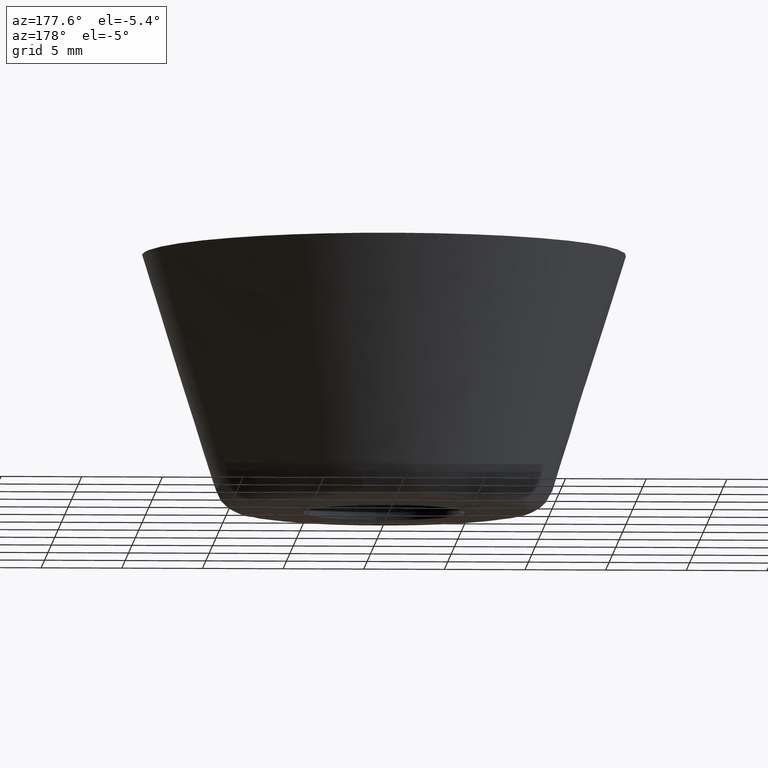
[diagram: clean part render]
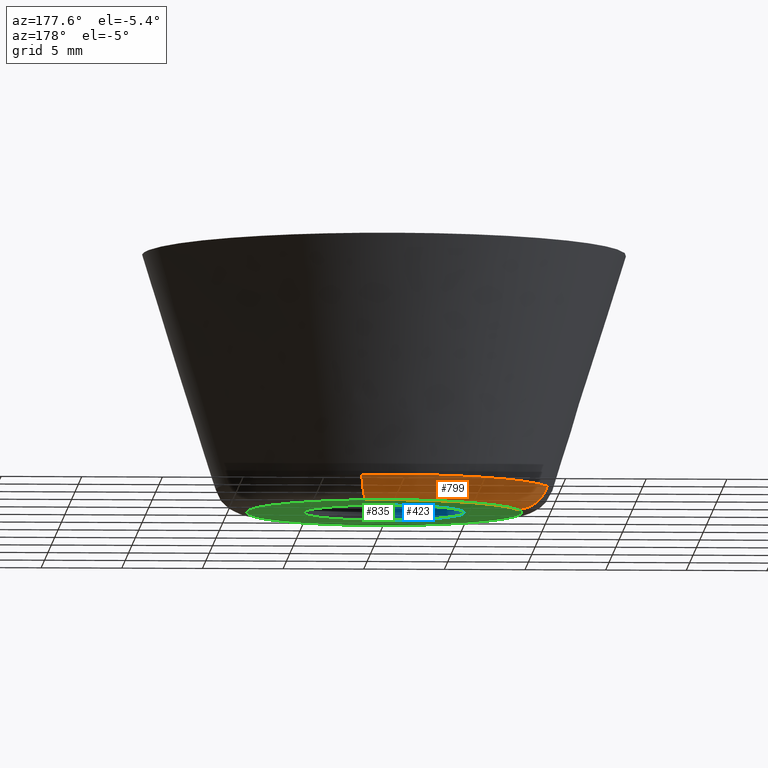
[diagram: same view with three faces highlighted in distinct colors, each labeled with its STEP entity id]
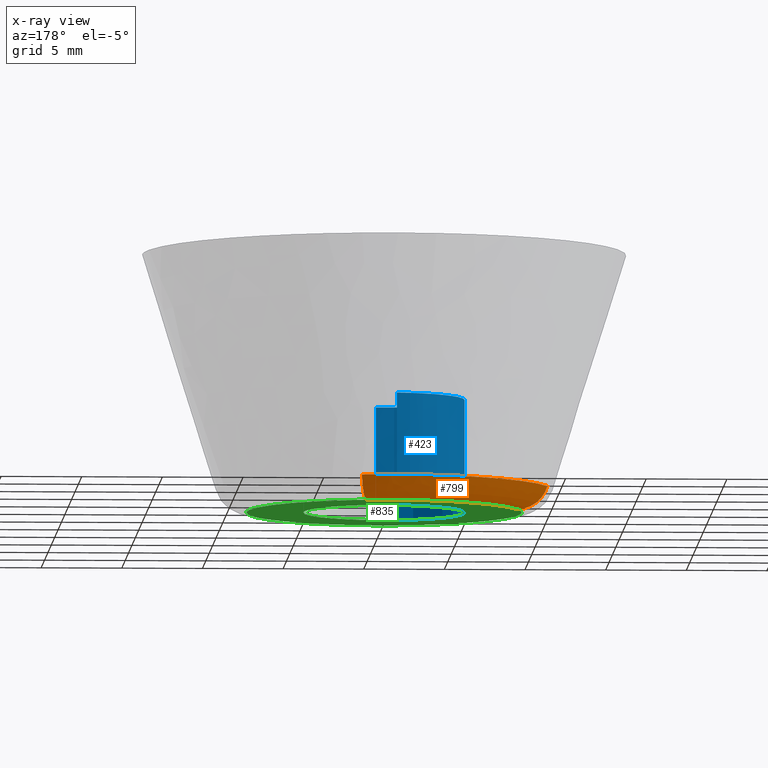
[diagram: x-ray of the same camera — body ghosted, the three highlighted faces saturated]
A machine part, auxiliary view with three faces highlighted in distinct colors.
The next image is the same camera in x-ray (body ghosted, the three faces saturated) — at least one of them is partly hidden behind the body in this view.
Their STEP definitions:

[orange] entity #799 — the highlighted face is a freeform B-spline surface patch.
#596=CARTESIAN_POINT('',(1.800007206947716,10.282212031388489,1.403450006860395));
#597=VERTEX_POINT('',#596);
#611=CARTESIAN_POINT('',(-10.005604438301059,2.975195796537900,1.403450006859276));
#612=VERTEX_POINT('',#611);
#613=CARTESIAN_POINT('',(-10.005604438301061,2.975195796537900,1.403450006859277));
#614=CARTESIAN_POINT('',(-7.786345895016502,10.438578000000000,1.403450000000000));
#615=CARTESIAN_POINT('',(0.0,10.438578000000000,1.403450000000000));
#616=CARTESIAN_POINT('',(0.906795330766891,10.438578000000001,1.403450000000000));
#617=CARTESIAN_POINT('',(1.800007206947716,10.282212031388491,1.403450006860396));
#625=(BOUNDED_CURVE()B_SPLINE_CURVE(2,(#613,#614,#615,#616,#617),.UNSPECIFIED.,.F.,.U.)B_SPLINE_CURVE_WITH_KNOTS((3,2,3),(0.048526662064601,0.250000000000000,0.279646299375404),.UNSPECIFIED.)CURVE()GEOMETRIC_REPRESENTATION_ITEM()RATIONAL_B_SPLINE_CURVE((0.908365862590292,0.763959302188042,1.0,0.965267199800123,0.938771991543219))REPRESENTATION_ITEM(''));
#626=EDGE_CURVE('',#612,#597,#625,.T.);
#679=CARTESIAN_POINT('',(1.470830021676659,8.401847551555782,-6.816059E-015));
#680=VERTEX_POINT('',#679);
#696=CARTESIAN_POINT('',(1.800007206947716,10.282212031388495,1.403450006860395));
#697=CARTESIAN_POINT('',(1.724379680431337,9.850203614982046,5.451971E-010));
#698=CARTESIAN_POINT('',(1.470830021676659,8.401847551555782,-6.816059E-015));
#706=(BOUNDED_CURVE()B_SPLINE_CURVE(2,(#696,#697,#698),.UNSPECIFIED.,.F.,.U.)B_SPLINE_CURVE_WITH_KNOTS((3,3),(-1.686257605639054,-0.312243931178952),.UNSPECIFIED.)CURVE()GEOMETRIC_REPRESENTATION_ITEM()RATIONAL_B_SPLINE_CURVE((0.862894643162690,0.695373525203012,0.863260430332707))REPRESENTATION_ITEM(''));
#707=EDGE_CURVE('',#597,#680,#706,.T.);
#714=CARTESIAN_POINT('',(-8.175824705407951,2.431105431688973,-6.828535E-015));
#715=VERTEX_POINT('',#714);
#716=CARTESIAN_POINT('',(-10.005604438301061,2.975195796537901,1.403450006859277));
#717=CARTESIAN_POINT('',(-9.585217724328048,2.850192575385053,6.570220E-010));
#718=CARTESIAN_POINT('',(-8.175824705407951,2.431105431688974,-6.828535E-015));
#726=(BOUNDED_CURVE()B_SPLINE_CURVE(2,(#716,#717,#718),.UNSPECIFIED.,.F.,.U.)B_SPLINE_CURVE_WITH_KNOTS((3,3),(-1.686257605637694,-0.312243931267177),.UNSPECIFIED.)CURVE()GEOMETRIC_REPRESENTATION_ITEM()RATIONAL_B_SPLINE_CURVE((0.901773603732463,0.726704580612781,0.902155871947911))REPRESENTATION_ITEM(''));
#727=EDGE_CURVE('',#612,#715,#726,.T.);
#762=CARTESIAN_POINT('',(-10.035953141252202,2.984220072279536,1.516278597957762));
#763=CARTESIAN_POINT('',(-7.378529933446092,11.921153054452715,1.516278597957762));
#764=CARTESIAN_POINT('',(1.805466935474009,10.313399732295656,1.516278597957762));
#765=CARTESIAN_POINT('',(-9.651292197792596,2.869840013670482,-0.093706077079363));
#766=CARTESIAN_POINT('',(-7.095723482917951,11.464235618060624,-0.093706077079363));
#767=CARTESIAN_POINT('',(1.736266471401505,9.918104734853504,-0.093706077079363));
#768=CARTESIAN_POINT('',(-8.063596392268726,2.397734013888266,0.003430152910115));
#769=CARTESIAN_POINT('',(-5.928434152110751,9.578299680021649,0.003430152910115));
#770=CARTESIAN_POINT('',(1.450640159668202,8.286516656950845,0.003430152910115));
#778=(BOUNDED_SURFACE()B_SPLINE_SURFACE(2,2,((#762,#765,#768),(#763,#766,#769),(#764,#767,#770)),.UNSPECIFIED.,.F.,.F.,.U.)B_SPLINE_SURFACE_WITH_KNOTS((3,3),(3,3),(0.0,15.942342899485590),(0.0,2.886478435327894),.UNSPECIFIED.)GEOMETRIC_REPRESENTATION_ITEM()RATIONAL_B_SPLINE_SURFACE(((0.920137580924619,0.708321534478731,0.920557986923071),(0.672195687722643,0.517455966225440,0.672502810380287),(0.880466878012303,0.677783043558204,0.880869158676225)))REPRESENTATION_ITEM('')SURFACE());
#779=CARTESIAN_POINT('',(-8.175824705407951,2.431105431688974,-6.828535E-015));
#780=CARTESIAN_POINT('',(-6.362414123795640,8.529617999999999,-1.421085E-014));
#781=CARTESIAN_POINT('',(0.0,8.529617999999999,-1.421085E-014));
#782=CARTESIAN_POINT('',(0.740964696164940,8.529617999999999,-1.421085E-014));
#783=CARTESIAN_POINT('',(1.470830021676659,8.401847551555782,-6.816059E-015));
#791=(BOUNDED_CURVE()B_SPLINE_CURVE(2,(#779,#780,#781,#782,#783),.UNSPECIFIED.,.F.,.U.)B_SPLINE_CURVE_WITH_KNOTS((3,2,3),(0.048526662066493,0.250000000000000,0.279646299377397),.UNSPECIFIED.)CURVE()GEOMETRIC_REPRESENTATION_ITEM()RATIONAL_B_SPLINE_CURVE((0.908365862587580,0.763959302190259,1.0,0.965267199797787,0.938771991539656))REPRESENTATION_ITEM(''));
#792=EDGE_CURVE('',#715,#680,#791,.T.);
#793=ORIENTED_EDGE('',*,*,#792,.F.);
#794=ORIENTED_EDGE('',*,*,#727,.F.);
#795=ORIENTED_EDGE('',*,*,#626,.T.);
#796=ORIENTED_EDGE('',*,*,#707,.T.);
#797=EDGE_LOOP('',(#793,#794,#795,#796));
#798=FACE_OUTER_BOUND('',#797,.T.);
#799=ADVANCED_FACE('',(#798),#778,.T.);

[blue] entity #423 — the highlighted face is a freeform B-spline surface patch.
#256=CARTESIAN_POINT('',(-0.590171173301897,4.965047631816179,7.0));
#257=VERTEX_POINT('',#256);
#275=CARTESIAN_POINT('',(-0.590161985997096,4.965048723849380,-4.259142E-017));
#276=VERTEX_POINT('',#275);
#277=CARTESIAN_POINT('',(-0.590171173301897,4.965047631816179,7.0));
#278=CARTESIAN_POINT('',(-0.590161985997096,4.965048723849380,-4.259142E-017));
#279=QUASI_UNIFORM_CURVE('',1,(#277,#278),.UNSPECIFIED.,.F.,.U.);
#280=EDGE_CURVE('',#257,#276,#279,.T.);
#299=CARTESIAN_POINT('',(0.305242697700494,-4.990673992107731,-4.163336E-017));
#300=VERTEX_POINT('',#299);
#314=CARTESIAN_POINT('',(0.305242697700494,-4.990673992107731,7.0));
#315=VERTEX_POINT('',#314);
#316=CARTESIAN_POINT('',(0.305242697700494,-4.990673992107731,7.0));
#317=CARTESIAN_POINT('',(0.305242697700494,-4.990673992107731,-4.163336E-017));
#318=QUASI_UNIFORM_CURVE('',1,(#316,#317),.UNSPECIFIED.,.F.,.U.);
#319=EDGE_CURVE('',#315,#300,#318,.T.);
#337=CARTESIAN_POINT('',(0.374015151210253,-4.986467688656898,7.175000000000003));
#338=CARTESIAN_POINT('',(0.339727342637196,-4.988564820868444,7.175000000000002));
#339=CARTESIAN_POINT('',(-4.685431294435048,-5.295916689783620,7.175000000000001));
#340=CARTESIAN_POINT('',(-4.990673992109334,-0.305242697674285,7.175000000000001));
#341=CARTESIAN_POINT('',(-5.278930983662638,4.407717454197504,7.175000000000000));
#342=CARTESIAN_POINT('',(-0.555063642270887,4.969220694053668,7.175000000000002));
#343=CARTESIAN_POINT('',(-0.520144802017644,4.973371327531964,7.175000000000001));
#344=CARTESIAN_POINT('',(0.374015151210253,-4.986467688656898,-0.179375000000000));
#345=CARTESIAN_POINT('',(0.339727342637196,-4.988564820868444,-0.179375000000000));
#346=CARTESIAN_POINT('',(-4.685431294435048,-5.295916689783620,-0.179375000000000));
#347=CARTESIAN_POINT('',(-4.990673992109334,-0.305242697674285,-0.179375000000000));
#348=CARTESIAN_POINT('',(-5.278930983662638,4.407717454197504,-0.179375000000000));
#349=CARTESIAN_POINT('',(-0.555063642270887,4.969220694053668,-0.179375000000000));
#350=CARTESIAN_POINT('',(-0.520144802017644,4.973371327531964,-0.179375000000000));
#358=(BOUNDED_SURFACE()B_SPLINE_SURFACE(2,1,((#337,#344),(#338,#345),(#339,#346),(#340,#347),(#341,#348),(#342,#349),(#343,#350)),.UNSPECIFIED.,.F.,.F.,.U.)B_SPLINE_SURFACE_WITH_KNOTS((3,1,2,1,3),(2,2),(0.0,0.081185909419015,8.365457156880913,16.318357554444329,16.399554059356099),(0.0,7.354375000000002),.UNSPECIFIED.)GEOMETRIC_REPRESENTATION_ITEM()RATIONAL_B_SPLINE_SURFACE(((1.005740710708698,1.005740710708698),(1.002870355354349,1.002870355354349),(0.707106781186548,0.707106781186548),(1.0,1.0),(0.718822509939086,0.718822509939086),(0.980146872359787,0.980146872359787),(0.982787943924448,0.982787943924448)))REPRESENTATION_ITEM('')SURFACE());
#359=CARTESIAN_POINT('',(-5.0,0.0,7.0));
#360=VERTEX_POINT('',#359);
#361=CARTESIAN_POINT('',(-5.0,0.0,7.0));
#362=CARTESIAN_POINT('',(-5.0,4.440872629724227,6.999999999999999));
#363=CARTESIAN_POINT('',(-0.590171173301897,4.965047631816179,7.0));
#371=(BOUNDED_CURVE()B_SPLINE_CURVE(2,(#361,#362,#363),.UNSPECIFIED.,.F.,.U.)B_SPLINE_CURVE_WITH_KNOTS((3,3),(0.0,0.229562473514412),.UNSPECIFIED.)CURVE()GEOMETRIC_REPRESENTATION_ITEM()RATIONAL_B_SPLINE_CURVE((1.0,0.731050832854344,0.956026754185470))REPRESENTATION_ITEM(''));
#372=EDGE_CURVE('',#360,#257,#371,.T.);
#373=ORIENTED_EDGE('',*,*,#372,.F.);
#374=CARTESIAN_POINT('',(0.305242697700494,-4.990673992107731,7.000000000000001));
#375=CARTESIAN_POINT('',(0.152763816519227,-5.000000000000001,7.000000000000001));
#376=CARTESIAN_POINT('',(0.0,-5.0,7.0));
#377=CARTESIAN_POINT('',(-5.000000000000001,-5.000000000000001,6.999999999999999));
#378=CARTESIAN_POINT('',(-5.0,0.0,7.0));
#386=(BOUNDED_CURVE()B_SPLINE_CURVE(2,(#374,#375,#376,#377,#378),.UNSPECIFIED.,.F.,.U.)B_SPLINE_CURVE_WITH_KNOTS((3,2,3),(0.739332962240156,0.750000000000000,1.0),.UNSPECIFIED.)CURVE()GEOMETRIC_REPRESENTATION_ITEM()RATIONAL_B_SPLINE_CURVE((0.976072041669318,0.987502787901259,1.0,0.707106781186548,1.0))REPRESENTATION_ITEM(''));
#387=EDGE_CURVE('',#315,#360,#386,.T.);
#388=ORIENTED_EDGE('',*,*,#387,.F.);
#389=ORIENTED_EDGE('',*,*,#319,.T.);
#390=CARTESIAN_POINT('',(-5.0,0.0,0.0));
#391=VERTEX_POINT('',#390);
#392=CARTESIAN_POINT('',(0.305242697700494,-4.990673992107731,-4.163336E-017));
#393=CARTESIAN_POINT('',(0.152763816519227,-5.000000000000001,0.0));
#394=CARTESIAN_POINT('',(0.0,-5.0,0.0));
#395=CARTESIAN_POINT('',(-5.000000000000001,-5.000000000000001,0.0));
#396=CARTESIAN_POINT('',(-5.0,0.0,0.0));
#404=(BOUNDED_CURVE()B_SPLINE_CURVE(2,(#392,#393,#394,#395,#396),.UNSPECIFIED.,.F.,.U.)B_SPLINE_CURVE_WITH_KNOTS((3,2,3),(0.739332962240156,0.750000000000000,1.0),.UNSPECIFIED.)CURVE()GEOMETRIC_REPRESENTATION_ITEM()RATIONAL_B_SPLINE_CURVE((0.976072041669318,0.987502787901259,1.0,0.707106781186548,1.0))REPRESENTATION_ITEM(''));
#405=EDGE_CURVE('',#300,#391,#404,.T.);
#406=ORIENTED_EDGE('',*,*,#405,.T.);
#407=CARTESIAN_POINT('',(-5.0,0.0,0.0));
#408=CARTESIAN_POINT('',(-5.0,4.440880904966643,0.0));
#409=CARTESIAN_POINT('',(-0.590161985997096,4.965048723849380,-4.259142E-017));
#417=(BOUNDED_CURVE()B_SPLINE_CURVE(2,(#407,#408,#409),.UNSPECIFIED.,.F.,.U.)B_SPLINE_CURVE_WITH_KNOTS((3,3),(0.0,0.229562786238015),.UNSPECIFIED.)CURVE()GEOMETRIC_REPRESENTATION_ITEM()RATIONAL_B_SPLINE_CURVE((1.0,0.731050466475853,0.956027367137448))REPRESENTATION_ITEM(''));
#418=EDGE_CURVE('',#391,#276,#417,.T.);
#419=ORIENTED_EDGE('',*,*,#418,.T.);
#420=ORIENTED_EDGE('',*,*,#280,.F.);
#421=EDGE_LOOP('',(#373,#388,#389,#406,#419,#420));
#422=FACE_OUTER_BOUND('',#421,.T.);
#423=ADVANCED_FACE('',(#422),#358,.F.);

[green] entity #835 — the highlighted face is a freeform B-spline surface patch.
#275=CARTESIAN_POINT('',(-0.590161985997096,4.965048723849380,-4.259142E-017));
#276=VERTEX_POINT('',#275);
#282=CARTESIAN_POINT('',(5.0,0.0,0.0));
#283=VERTEX_POINT('',#282);
#284=CARTESIAN_POINT('',(-0.590161985997096,4.965048723849380,-4.259142E-017));
#285=CARTESIAN_POINT('',(-0.296115956054067,5.0,0.0));
#286=CARTESIAN_POINT('',(0.0,5.0,0.0));
#287=CARTESIAN_POINT('',(5.000000000000001,5.000000000000001,0.0));
#288=CARTESIAN_POINT('',(5.0,0.0,0.0));
#296=(BOUNDED_CURVE()B_SPLINE_CURVE(2,(#284,#285,#286,#287,#288),.UNSPECIFIED.,.F.,.U.)B_SPLINE_CURVE_WITH_KNOTS((3,2,3),(0.229562786238015,0.250000000000000,0.500000000000000),.UNSPECIFIED.)CURVE()GEOMETRIC_REPRESENTATION_ITEM()RATIONAL_B_SPLINE_CURVE((0.956027367137448,0.976056314710695,1.0,0.707106781186548,1.0))REPRESENTATION_ITEM(''));
#297=EDGE_CURVE('',#276,#283,#296,.T.);
#299=CARTESIAN_POINT('',(0.305242697700494,-4.990673992107731,-4.163336E-017));
#300=VERTEX_POINT('',#299);
#301=CARTESIAN_POINT('',(5.0,0.0,0.0));
#302=CARTESIAN_POINT('',(4.999999999999999,-4.703530334478959,0.0));
#303=CARTESIAN_POINT('',(0.305242697700494,-4.990673992107731,-4.163336E-017));
#311=(BOUNDED_CURVE()B_SPLINE_CURVE(2,(#301,#302,#303),.UNSPECIFIED.,.F.,.U.)B_SPLINE_CURVE_WITH_KNOTS((3,3),(0.500000000000000,0.739332962240155),.UNSPECIFIED.)CURVE()GEOMETRIC_REPRESENTATION_ITEM()RATIONAL_B_SPLINE_CURVE((1.0,0.719603993285290,0.976072041669316))REPRESENTATION_ITEM(''));
#312=EDGE_CURVE('',#283,#300,#311,.T.);
#390=CARTESIAN_POINT('',(-5.0,0.0,0.0));
#391=VERTEX_POINT('',#390);
#392=CARTESIAN_POINT('',(0.305242697700494,-4.990673992107731,-4.163336E-017));
#393=CARTESIAN_POINT('',(0.152763816519227,-5.000000000000001,0.0));
#394=CARTESIAN_POINT('',(0.0,-5.0,0.0));
#395=CARTESIAN_POINT('',(-5.000000000000001,-5.000000000000001,0.0));
#396=CARTESIAN_POINT('',(-5.0,0.0,0.0));
#404=(BOUNDED_CURVE()B_SPLINE_CURVE(2,(#392,#393,#394,#395,#396),.UNSPECIFIED.,.F.,.U.)B_SPLINE_CURVE_WITH_KNOTS((3,2,3),(0.739332962240156,0.750000000000000,1.0),.UNSPECIFIED.)CURVE()GEOMETRIC_REPRESENTATION_ITEM()RATIONAL_B_SPLINE_CURVE((0.976072041669318,0.987502787901259,1.0,0.707106781186548,1.0))REPRESENTATION_ITEM(''));
#405=EDGE_CURVE('',#300,#391,#404,.T.);
#407=CARTESIAN_POINT('',(-5.0,0.0,0.0));
#408=CARTESIAN_POINT('',(-5.0,4.440880904966643,0.0));
#409=CARTESIAN_POINT('',(-0.590161985997096,4.965048723849380,-4.259142E-017));
#417=(BOUNDED_CURVE()B_SPLINE_CURVE(2,(#407,#408,#409),.UNSPECIFIED.,.F.,.U.)B_SPLINE_CURVE_WITH_KNOTS((3,3),(0.0,0.229562786238015),.UNSPECIFIED.)CURVE()GEOMETRIC_REPRESENTATION_ITEM()RATIONAL_B_SPLINE_CURVE((1.0,0.731050466475853,0.956027367137448))REPRESENTATION_ITEM(''));
#418=EDGE_CURVE('',#391,#276,#417,.T.);
#679=CARTESIAN_POINT('',(1.470830021676659,8.401847551555782,-6.816059E-015));
#680=VERTEX_POINT('',#679);
#681=CARTESIAN_POINT('',(8.529617999999999,0.0,0.0));
#682=VERTEX_POINT('',#681);
#683=CARTESIAN_POINT('',(1.470830021676660,8.401847551555782,-6.816059E-015));
#684=CARTESIAN_POINT('',(8.529617999999999,7.166133952252383,-1.421085E-014));
#685=CARTESIAN_POINT('',(8.529617999999999,0.0,-1.421085E-014));
#693=(BOUNDED_CURVE()B_SPLINE_CURVE(2,(#683,#684,#685),.UNSPECIFIED.,.F.,.U.)B_SPLINE_CURVE_WITH_KNOTS((3,3),(0.279646299377397,0.500000000000000),.UNSPECIFIED.)CURVE()GEOMETRIC_REPRESENTATION_ITEM()RATIONAL_B_SPLINE_CURVE((0.938771991539656,0.741839581388760,1.0))REPRESENTATION_ITEM(''));
#694=EDGE_CURVE('',#680,#682,#693,.T.);
#714=CARTESIAN_POINT('',(-8.175824705407951,2.431105431688973,-6.828535E-015));
#715=VERTEX_POINT('',#714);
#729=CARTESIAN_POINT('',(-8.529617999999999,0.0,-1.421085E-014));
#730=VERTEX_POINT('',#729);
#731=CARTESIAN_POINT('',(-8.529617999999999,0.0,-1.421085E-014));
#732=CARTESIAN_POINT('',(-8.529617999999999,1.241296086287987,-1.421085E-014));
#733=CARTESIAN_POINT('',(-8.175824705407951,2.431105431688973,-6.828535E-015));
#741=(BOUNDED_CURVE()B_SPLINE_CURVE(2,(#731,#732,#733),.UNSPECIFIED.,.F.,.U.)B_SPLINE_CURVE_WITH_KNOTS((3,3),(0.0,0.048526662066493),.UNSPECIFIED.)CURVE()GEOMETRIC_REPRESENTATION_ITEM()RATIONAL_B_SPLINE_CURVE((1.0,0.943147478996289,0.908365862587580))REPRESENTATION_ITEM(''));
#742=EDGE_CURVE('',#730,#715,#741,.T.);
#744=CARTESIAN_POINT('',(8.529617999999999,0.0,-1.421085E-014));
#745=CARTESIAN_POINT('',(8.529617999999999,-8.529617999999999,-1.421085E-014));
#746=CARTESIAN_POINT('',(0.0,-8.529617999999999,-1.421085E-014));
#747=CARTESIAN_POINT('',(-8.529617999999999,-8.529617999999999,-1.421085E-014));
#748=CARTESIAN_POINT('',(-8.529617999999999,0.0,-1.421085E-014));
#756=(BOUNDED_CURVE()B_SPLINE_CURVE(2,(#744,#745,#746,#747,#748),.UNSPECIFIED.,.F.,.U.)B_SPLINE_CURVE_WITH_KNOTS((3,2,3),(0.500000000000000,0.750000000000000,1.0),.UNSPECIFIED.)CURVE()GEOMETRIC_REPRESENTATION_ITEM()RATIONAL_B_SPLINE_CURVE((1.0,0.707106781186548,1.0,0.707106781186548,1.0))REPRESENTATION_ITEM(''));
#757=EDGE_CURVE('',#682,#730,#756,.T.);
#779=CARTESIAN_POINT('',(-8.175824705407951,2.431105431688974,-6.828535E-015));
#780=CARTESIAN_POINT('',(-6.362414123795640,8.529617999999999,-1.421085E-014));
#781=CARTESIAN_POINT('',(0.0,8.529617999999999,-1.421085E-014));
#782=CARTESIAN_POINT('',(0.740964696164940,8.529617999999999,-1.421085E-014));
#783=CARTESIAN_POINT('',(1.470830021676659,8.401847551555782,-6.816059E-015));
#791=(BOUNDED_CURVE()B_SPLINE_CURVE(2,(#779,#780,#781,#782,#783),.UNSPECIFIED.,.F.,.U.)B_SPLINE_CURVE_WITH_KNOTS((3,2,3),(0.048526662066493,0.250000000000000,0.279646299377397),.UNSPECIFIED.)CURVE()GEOMETRIC_REPRESENTATION_ITEM()RATIONAL_B_SPLINE_CURVE((0.908365862587580,0.763959302190259,1.0,0.965267199797787,0.938771991539656))REPRESENTATION_ITEM(''));
#792=EDGE_CURVE('',#715,#680,#791,.T.);
#818=CARTESIAN_POINT('',(-9.381727125415692,-9.381635782546464,-7.105427E-015));
#819=CARTESIAN_POINT('',(9.381727277937149,-9.381635782546464,-7.105427E-015));
#820=CARTESIAN_POINT('',(-9.381727125415692,9.379807250078795,-7.105427E-015));
#821=CARTESIAN_POINT('',(9.381727277937149,9.379807250078795,-7.105427E-015));
#822=B_SPLINE_SURFACE_WITH_KNOTS('',1,1,((#818,#820),(#819,#821)),.UNSPECIFIED.,.F.,.F.,.U.,(2,2),(2,2),(0.0,18.763454403352839),(0.0,18.761443032625259),.UNSPECIFIED.);
#823=ORIENTED_EDGE('',*,*,#742,.T.);
#824=ORIENTED_EDGE('',*,*,#792,.T.);
#825=ORIENTED_EDGE('',*,*,#694,.T.);
#826=ORIENTED_EDGE('',*,*,#757,.T.);
#827=EDGE_LOOP('',(#823,#824,#825,#826));
#828=FACE_OUTER_BOUND('',#827,.T.);
#829=ORIENTED_EDGE('',*,*,#312,.F.);
#830=ORIENTED_EDGE('',*,*,#297,.F.);
#831=ORIENTED_EDGE('',*,*,#418,.F.);
#832=ORIENTED_EDGE('',*,*,#405,.F.);
#833=EDGE_LOOP('',(#829,#830,#831,#832));
#834=FACE_BOUND('',#833,.T.);
#835=ADVANCED_FACE('',(#828,#834),#822,.F.);